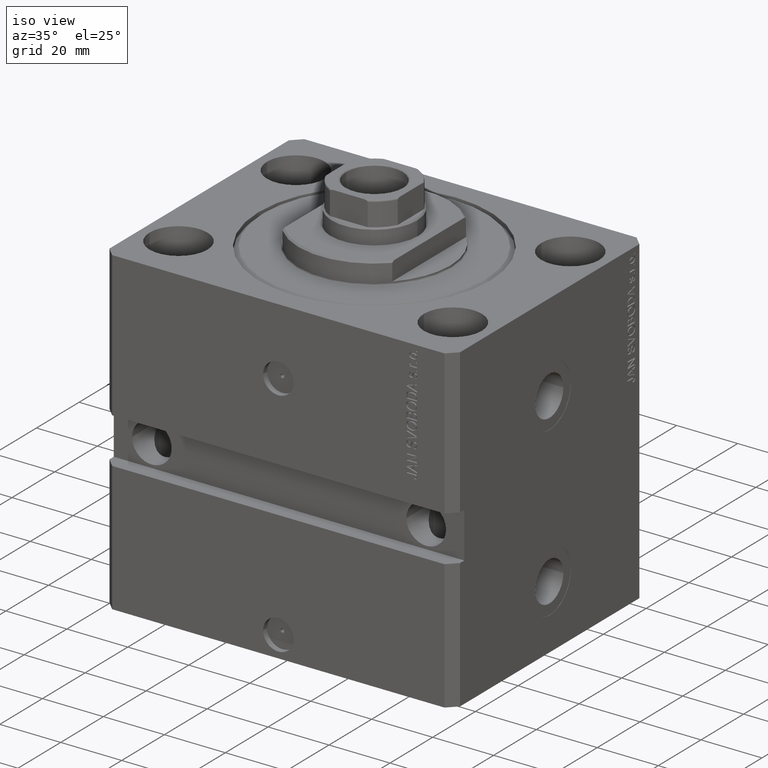
[diagram: clean part render]
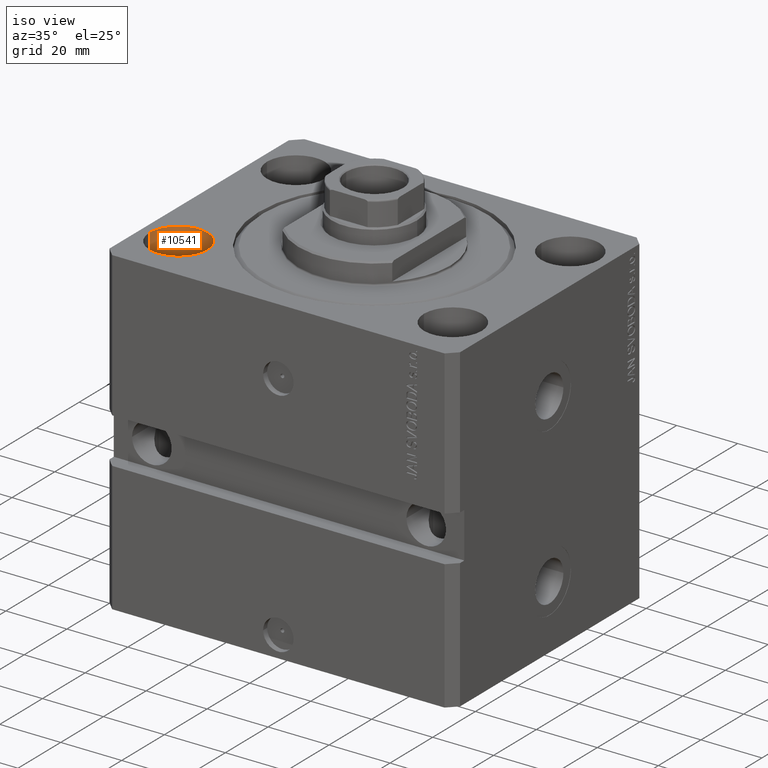
[diagram: same view with one face highlighted and labeled with its STEP entity id]
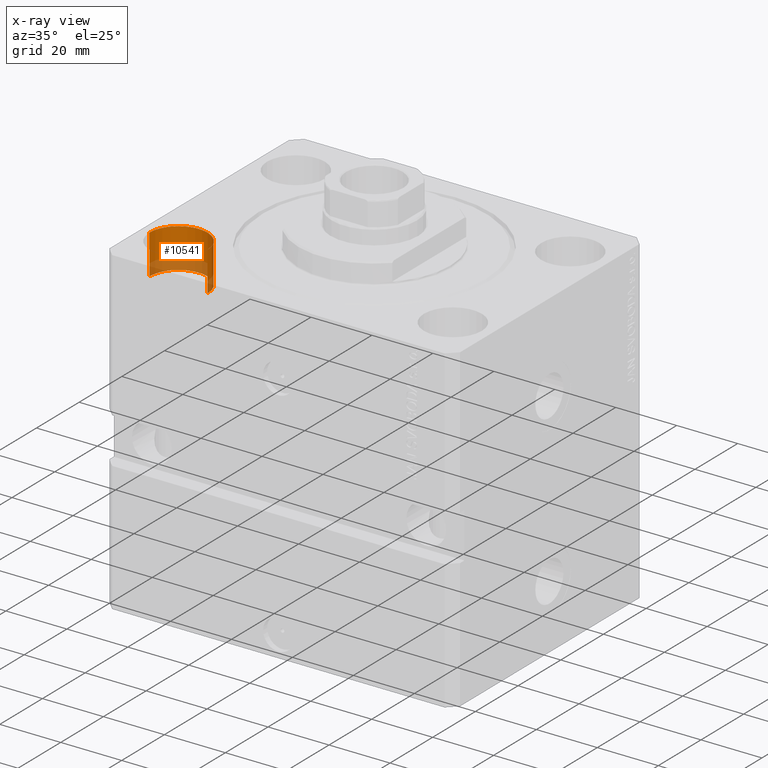
[diagram: x-ray of the same camera — body ghosted, the highlighted face saturated]
A machine part, iso view. The second image highlights one B-rep face of the part: STEP entity #10541.
The next image is the same camera in x-ray: the body ghosted, the highlighted face saturated — about 29% of this face is hidden behind the body in this view.
In plain terms, the highlighted cylindrical surface (edge-blend (fillet) strip) has radius 9.5 mm, axis along (0, 0, 1).
Its self-contained STEP definition (entity closure, byte-faithful):
#1506 = EDGE_CURVE ( 'NONE', #27020, #24910, #26490, .T. ) ;
#3223 = CARTESIAN_POINT ( 'NONE',  ( -54.50000000000000000, -27.49999999999999645, -13.00000000000000000 ) ) ;
#4039 = DIRECTION ( 'NONE',  ( 0.000000000000000000, 0.000000000000000000, 1.000000000000000000 ) ) ;
#4908 = VECTOR ( 'NONE', #6164, 1000.000000000000000 ) ;
#5906 = CIRCLE ( 'NONE', #23388, 9.500000000000001776 ) ;
#6164 = DIRECTION ( 'NONE',  ( -0.000000000000000000, -0.000000000000000000, 1.000000000000000000 ) ) ;
#6485 = DIRECTION ( 'NONE',  ( 0.000000000000000000, 0.000000000000000000, 1.000000000000000000 ) ) ;
#7488 = CARTESIAN_POINT ( 'NONE',  ( -54.50000000000000000, -27.49999999999999645, 0.000000000000000000 ) ) ;
#7534 = CARTESIAN_POINT ( 'NONE',  ( -35.50000000000000000, -27.49999999999999645, 0.000000000000000000 ) ) ;
#8940 = ORIENTED_EDGE ( 'NONE', *, *, #1506, .F. ) ;
#9074 = EDGE_CURVE ( 'NONE', #31667, #27020, #21148, .T. ) ;
#10541 = ADVANCED_FACE ( 'NONE', ( #14069 ), #36974, .F. ) ;
#11302 = LINE ( 'NONE', #40741, #4908 ) ;
#11425 = CARTESIAN_POINT ( 'NONE',  ( -35.50000000000000000, -27.49999999999999645, -13.00000000000000000 ) ) ;
#14069 = FACE_OUTER_BOUND ( 'NONE', #23176, .T. ) ;
#15326 = ORIENTED_EDGE ( 'NONE', *, *, #17039, .T. ) ;
#17039 = EDGE_CURVE ( 'NONE', #31667, #40958, #11302, .T. ) ;
#17164 = AXIS2_PLACEMENT_3D ( 'NONE', #38370, #4039, #42826 ) ;
#21148 = CIRCLE ( 'NONE', #17164, 9.500000000000001776 ) ;
#21649 = DIRECTION ( 'NONE',  ( 1.000000000000000000, 0.000000000000000000, 0.000000000000000000 ) ) ;
#22755 = CARTESIAN_POINT ( 'NONE',  ( -54.50000000000000000, -27.49999999999999645, -13.00000000000000000 ) ) ;
#23176 = EDGE_LOOP ( 'NONE', ( #8940, #35026, #15326, #40569 ) ) ;
#23388 = AXIS2_PLACEMENT_3D ( 'NONE', #44301, #6485, #21649 ) ;
#23548 = AXIS2_PLACEMENT_3D ( 'NONE', #29266, #32030, #47186 ) ;
#24910 = VERTEX_POINT ( 'NONE', #7488 ) ;
#26490 = LINE ( 'NONE', #22755, #40106 ) ;
#27020 = VERTEX_POINT ( 'NONE', #3223 ) ;
#29266 = CARTESIAN_POINT ( 'NONE',  ( -45.00000000000000000, -27.49999999999999645, -13.00000000000000000 ) ) ;
#31667 = VERTEX_POINT ( 'NONE', #11425 ) ;
#32030 = DIRECTION ( 'NONE',  ( -0.000000000000000000, -0.000000000000000000, 1.000000000000000000 ) ) ;
#35026 = ORIENTED_EDGE ( 'NONE', *, *, #9074, .F. ) ;
#36974 = CYLINDRICAL_SURFACE ( 'NONE', #23548, 9.500000000000001776 ) ;
#37956 = DIRECTION ( 'NONE',  ( -0.000000000000000000, -0.000000000000000000, 1.000000000000000000 ) ) ;
#38370 = CARTESIAN_POINT ( 'NONE',  ( -45.00000000000000000, -27.49999999999999645, -13.00000000000000000 ) ) ;
#39949 = EDGE_CURVE ( 'NONE', #40958, #24910, #5906, .T. ) ;
#40106 = VECTOR ( 'NONE', #37956, 1000.000000000000000 ) ;
#40569 = ORIENTED_EDGE ( 'NONE', *, *, #39949, .T. ) ;
#40741 = CARTESIAN_POINT ( 'NONE',  ( -35.50000000000000000, -27.49999999999999645, -13.00000000000000000 ) ) ;
#40958 = VERTEX_POINT ( 'NONE', #7534 ) ;
#42826 = DIRECTION ( 'NONE',  ( 1.000000000000000000, 0.000000000000000000, 0.000000000000000000 ) ) ;
#44301 = CARTESIAN_POINT ( 'NONE',  ( -45.00000000000000000, -27.49999999999999645, 0.000000000000000000 ) ) ;
#47186 = DIRECTION ( 'NONE',  ( 1.000000000000000000, 0.000000000000000000, 0.000000000000000000 ) ) ;